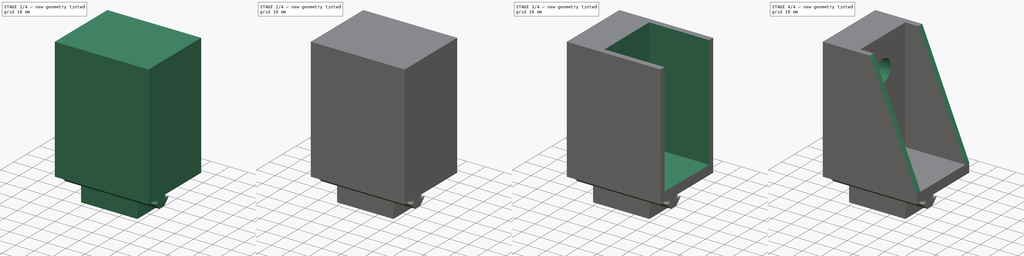
[diagram: build sequence overview — one tinted view per stage of 4, left to right]
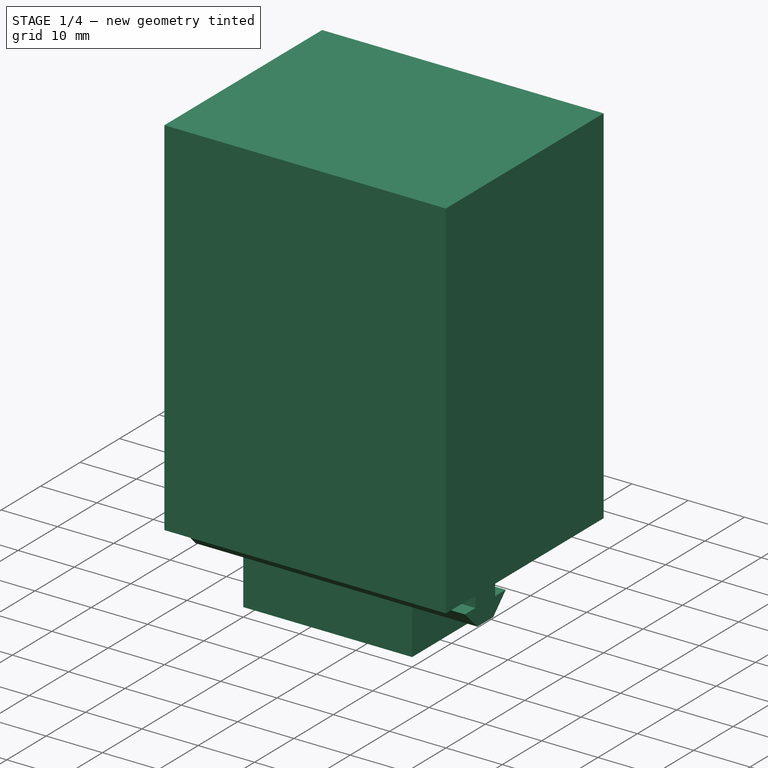
[diagram: stage 1 of 4 — iso view after this stage's code; geometry added in this stage tinted green]
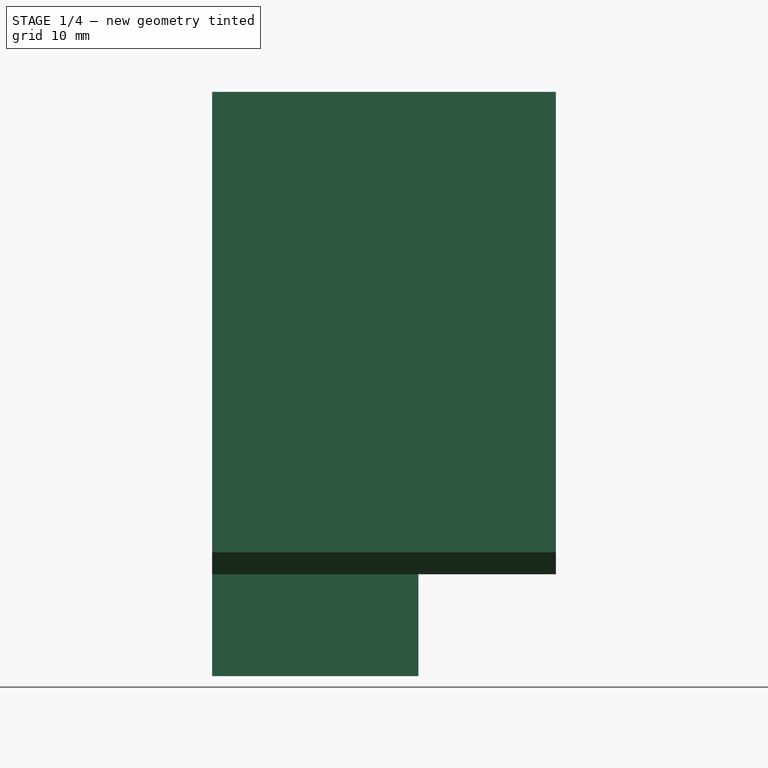
[diagram: stage 1 of 4 — front view after this stage's code; geometry added in this stage tinted green]
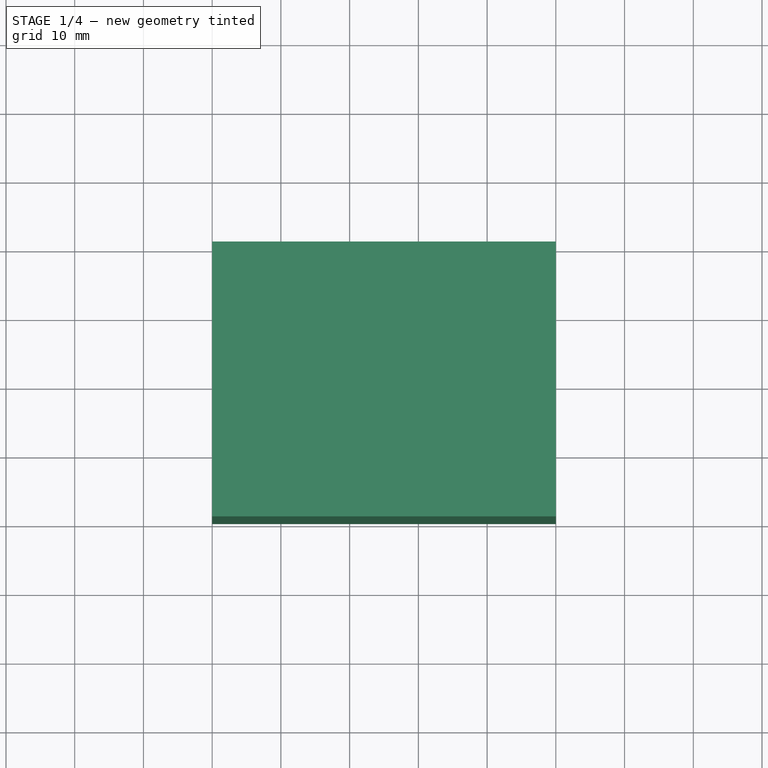
[diagram: stage 1 of 4 — top view after this stage's code; geometry added in this stage tinted green]
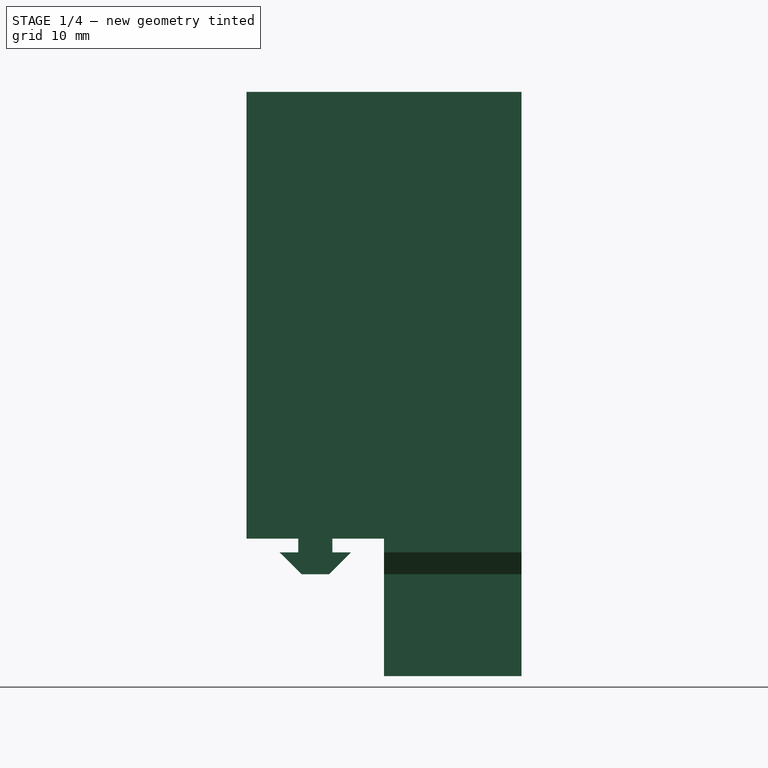
[diagram: stage 1 of 4 — right view after this stage's code; geometry added in this stage tinted green]
FCSTD DOCUMENT  (FreeCAD 0.18R4 (GitTag))
Label: corner-right
License: All rights reserved
LicenseURL: http://en.wikipedia.org/wiki/All_rights_reserved
objects: Sketcher::SketchObject×11, PartDesign::Pocket×10, PartDesign::Pad×1, PartDesign::Body×1
note: 34 computed .brp shape members not serialized (recipe doc carries the construction recipe); baked Part::Feature solids carry a one-line shape summary decoded from their .brp

FEATURE [Sketcher::SketchObject] Sketch
  MapMode = 5
  Placement = pos=(0,0,0) rot=(0.57735,0.57735,0.57735;2.0944rad)
  Support = -> [YZ_Plane]
  sketch-geometry (4):
    g0: LineSegment StartX=-20 StartY=42.5 StartZ=0 EndX=20 EndY=42.5 EndZ=0
    g1: LineSegment StartX=20 StartY=42.5 StartZ=0 EndX=20 EndY=-42.5 EndZ=0
    g2: LineSegment StartX=20 StartY=-42.5 StartZ=0 EndX=-20 EndY=-42.5 EndZ=0
    g3: LineSegment StartX=-20 StartY=-42.5 StartZ=0 EndX=-20 EndY=42.5 EndZ=0
  constraints (11):
    c: Coincident(g0,g1)
    c: Coincident(g1,g2)
    c: Coincident(g2,g3)
    c: Coincident(g3,g0)
    c: Horizontal(g0)
    c: Horizontal(g2)
    c: Vertical(g1)
    c: Vertical(g3)
    c: DistanceY(g3,g3) = 85
    c: DistanceX(g2,g2) = 40
    c: Symmetric(g0,g1,g-1)
FEATURE [PartDesign::Pad] Pad
  Length = 50
  Length2 = 100
  Placement = pos=(0,0,0) rot=(0.57735,0.57735,0.57735;2.0944rad)
  Profile = -> Sketch
  Type = 0
FEATURE [Sketcher::SketchObject] Sketch001
  ExternalGeometry = -> [Pad]
  MapMode = 5
  Placement = pos=(50,-2.22e-14,1.67e-14) rot=(0.57735,0.57735,0.57735;2.0944rad)
  Support = -> [Pad]
  sketch-geometry (14):
    g0: LineSegment [constr] StartX=-1.11e-14 StartY=-22.5 StartZ=0 EndX=-20 EndY=-22.5 EndZ=0
    g1: LineSegment StartX=-20 StartY=-22.5 StartZ=0 EndX=-20 EndY=-42.5 EndZ=0
    g2: LineSegment [constr] StartX=-10 StartY=-22.5 StartZ=0 EndX=-10 EndY=-44.2673 EndZ=0
    g3: LineSegment StartX=-12.484 StartY=-22.5 StartZ=0 EndX=-12.484 EndY=-24.5 EndZ=0
    g4: LineSegment StartX=-12.484 StartY=-24.5 StartZ=0 EndX=-15.184 EndY=-24.5 EndZ=0
    g5: LineSegment StartX=-15.184 StartY=-24.5 StartZ=0 EndX=-12 EndY=-27.68 EndZ=0
    g6: LineSegment StartX=-12 StartY=-27.68 StartZ=0 EndX=-8 EndY=-27.68 EndZ=0
    g7: LineSegment StartX=-8 StartY=-27.68 StartZ=0 EndX=-4.81604 EndY=-24.5 EndZ=0
    g8: LineSegment StartX=-4.81604 StartY=-24.5 StartZ=0 EndX=-7.51604 EndY=-24.5 EndZ=0
    g9: LineSegment StartX=-7.51604 StartY=-24.5 StartZ=0 EndX=-7.51604 EndY=-22.5 EndZ=0
    g10: LineSegment StartX=-20 StartY=-42.5 StartZ=0 EndX=-1.07e-14 EndY=-42.5 EndZ=0
    g11: LineSegment StartX=-1.11e-14 StartY=-22.5 StartZ=0 EndX=-1.11e-14 EndY=-42.5 EndZ=0
    g12: LineSegment StartX=-20 StartY=-22.5 StartZ=0 EndX=-12.484 EndY=-22.5 EndZ=0
    g13: LineSegment StartX=-7.51604 StartY=-22.5 StartZ=0 EndX=-1.15e-14 EndY=-22.5 EndZ=0
  constraints (39):
    c: Horizontal(g0)
    c: DistanceX(g0,g0) = 20
    c: DistanceY(g-4,g0) = 20
    c: Vertical(g1)
    c: Coincident(g1,g0)
    c: Vertical(g2)
    c: Symmetric(g0,g0,g2)
    c: Coincident(g3,g4)
    c: Coincident(g4,g5)
    c: Coincident(g5,g6)
    c: Coincident(g6,g7)
    c: Coincident(g7,g8)
    c: Coincident(g8,g9)
    c: Equal(g3,g9)
    c: DistanceY(g9,g9) = 2
    c: PointOnObject(g3,g0)
    c: PointOnObject(g9,g0)
    c: Horizontal(g8)
    c: Horizontal(g4)
    c: Equal(g4,g8)
    c: DistanceX(g4,g4) = 2.7
    c: Vertical(g3)
    c: Vertical(g9)
    c: DistanceX(g6,g6) = 4
    c: DistanceY(g6,g2) = 5.18
    c: Distance(g5) = 4.5
    c: Distance(g7) = 4.5
    c: Symmetric(g5,g6,g2)
    c: PointOnObject(g1,g-4)
    c: Coincident(g10,g1)
    c: Coincident(g11,g0)
    c: Coincident(g13,g9)
    c: Coincident(g13,g0)
    c: Coincident(g12,g3)
    c: Coincident(g12,g0)
    c: Coincident(g10,g11)
    c: PointOnObject(g1,g-5)
    c: Vertical(g11)
    c: Horizontal(g10)
FEATURE [PartDesign::Pocket] Pocket
  BaseFeature = -> Pad
  Length = 50
  Length2 = 100
  Placement = pos=(0,0,0) rot=(0.57735,0.57735,0.57735;2.0944rad)
  Profile = -> Sketch001
  Type = 0
FEATURE [Sketcher::SketchObject] Sketch002
  ExternalGeometry = -> [Pocket]
  MapMode = 5
  Placement = pos=(8.9e-15,20,-1.33e-14) rot=(0.57735,0.57735,0.57735;4.18879rad)
  Support = -> [Pocket]
  sketch-geometry (14):
    g0: LineSegment StartX=-22.5 StartY=50 StartZ=0 EndX=-42.5 EndY=50 EndZ=0
    g1: LineSegment StartX=-42.5 StartY=50 StartZ=0 EndX=-42.5 EndY=30 EndZ=0
    g2: LineSegment StartX=-42.5 StartY=30 StartZ=0 EndX=-22.5 EndY=30 EndZ=0
    g3: LineSegment [constr] StartX=-22.5 StartY=30 StartZ=0 EndX=-22.5 EndY=50 EndZ=0
    g4: LineSegment [constr] StartX=-48.0641 StartY=40 StartZ=0 EndX=-22.5 EndY=40 EndZ=0
    g5: LineSegment StartX=-22.5 StartY=42.48 StartZ=0 EndX=-24.5 EndY=42.48 EndZ=0
    g6: LineSegment StartX=-24.5 StartY=42.48 StartZ=0 EndX=-24.5 EndY=45.18 EndZ=0
    g7: LineSegment StartX=-24.5 StartY=45.18 StartZ=0 EndX=-27.68 EndY=42 EndZ=0
    g8: LineSegment StartX=-27.68 StartY=42 StartZ=0 EndX=-27.68 EndY=38 EndZ=0
    g9: LineSegment StartX=-27.68 StartY=38 StartZ=0 EndX=-24.5 EndY=34.82 EndZ=0
    g10: LineSegment StartX=-24.5 StartY=34.82 StartZ=0 EndX=-24.5 EndY=37.52 EndZ=0
    g11: LineSegment StartX=-24.5 StartY=37.52 StartZ=0 EndX=-22.5 EndY=37.52 EndZ=0
    g12: LineSegment StartX=-22.5 StartY=42.48 StartZ=0 EndX=-22.5 EndY=50 EndZ=0
    g13: LineSegment StartX=-22.5 StartY=37.52 StartZ=0 EndX=-22.5 EndY=30 EndZ=0
  constraints (38):
    c: Coincident(g0,g1)
    c: Coincident(g1,g2)
    c: Coincident(g2,g3)
    c: Coincident(g3,g0)
    c: Horizontal(g0)
    c: Horizontal(g2)
    c: Vertical(g1)
    c: Vertical(g3)
    c: Equal(g3,g2)
    c: DistanceX(g2,g2) = 20
    c: Coincident(g0,g-4)
    c: Horizontal(g4)
    c: Symmetric(g0,g2,g4)
    c: Coincident(g5,g6)
    c: Coincident(g6,g7)
    c: Coincident(g7,g8)
    c: Coincident(g8,g9)
    c: Coincident(g9,g10)
    c: Coincident(g10,g11)
    c: Horizontal(g5)
    c: Horizontal(g11)
    c: Vertical(g10)
    c: Vertical(g6)
    c: PointOnObject(g5,g3)
    c: PointOnObject(g11,g3)
    c: DistanceX(g5,g5) = 2
    c: Equal(g5,g11)
    c: DistanceY(g6,g6) = 2.7
    c: Equal(g6,g10)
    c: DistanceY(g8,g8) = 4
    c: Angle(g7,g6) = 0.785398
    c: Angle(g10,g9) = 0.785398
    c: DistanceX(g8,g11) = 5.18
    c: Symmetric(g7,g8,g4)
    c: Coincident(g12,g0)
    c: Coincident(g12,g5)
    c: Coincident(g13,g11)
    c: Coincident(g13,g2)
FEATURE [PartDesign::Pocket] Pocket001
  BaseFeature = -> Pocket
  Length = 20
  Length2 = 100
  Placement = pos=(0,0,0) rot=(0.57735,0.57735,0.57735;2.0944rad)
  Profile = -> Sketch002
  Type = 0
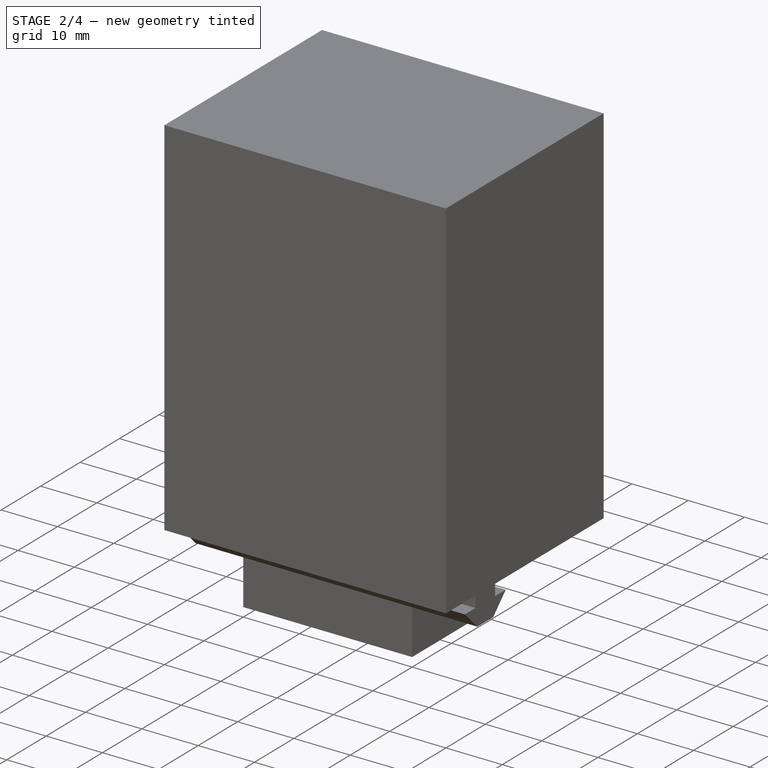
[diagram: stage 2 of 4 — iso view after this stage's code; geometry added in this stage tinted green]
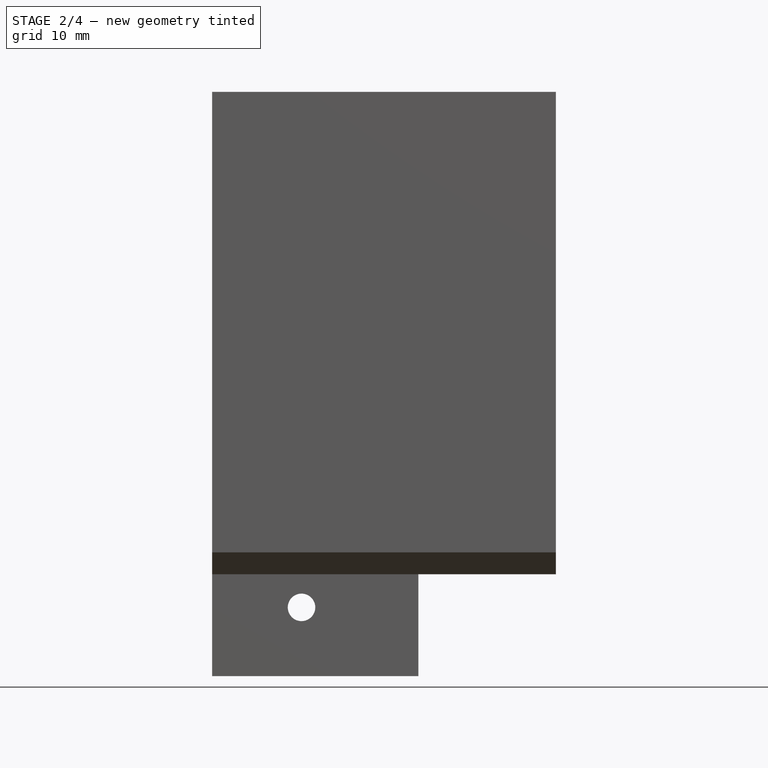
[diagram: stage 2 of 4 — front view after this stage's code; geometry added in this stage tinted green]
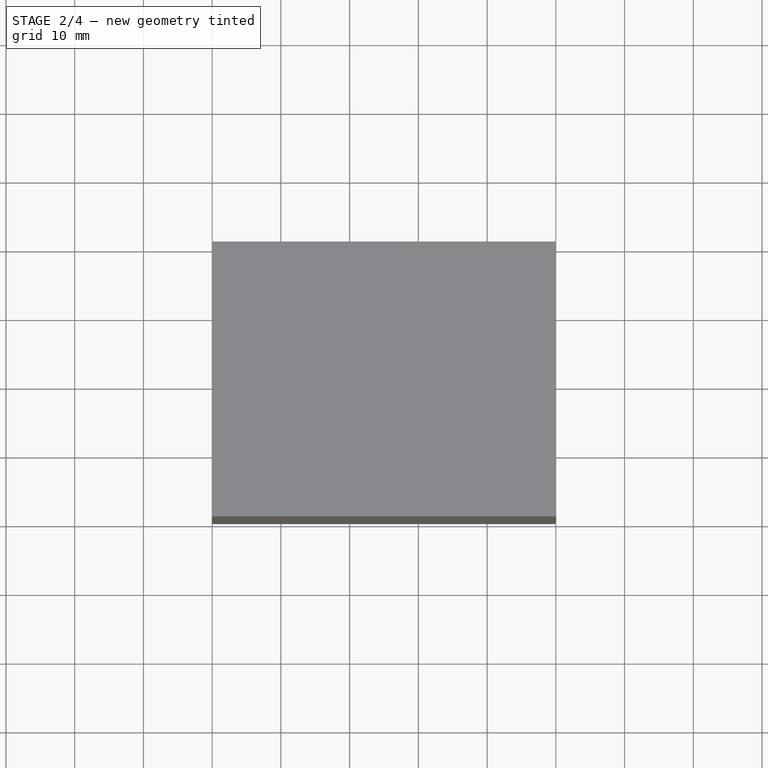
[diagram: stage 2 of 4 — top view after this stage's code; geometry added in this stage tinted green]
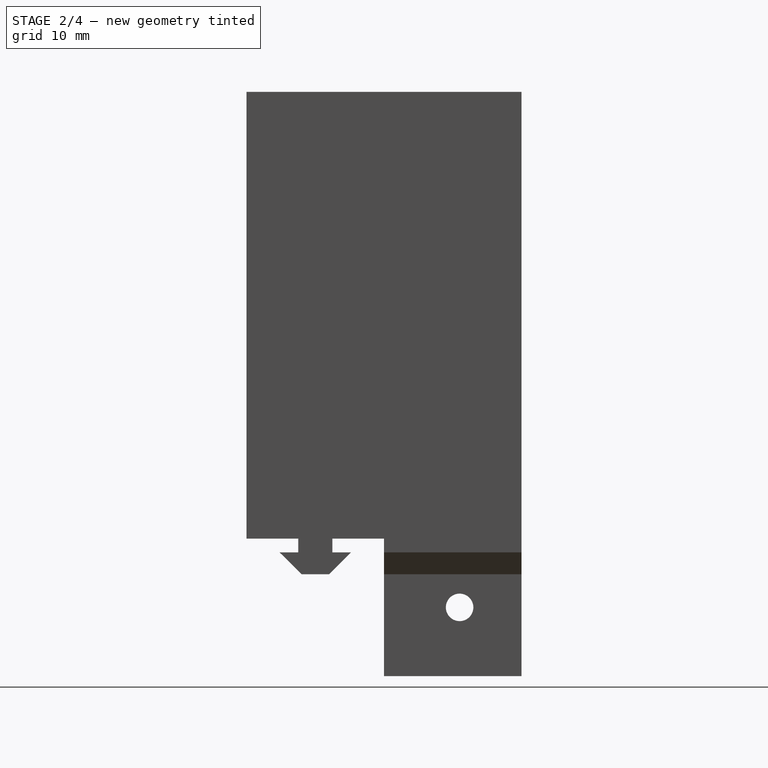
[diagram: stage 2 of 4 — right view after this stage's code; geometry added in this stage tinted green]
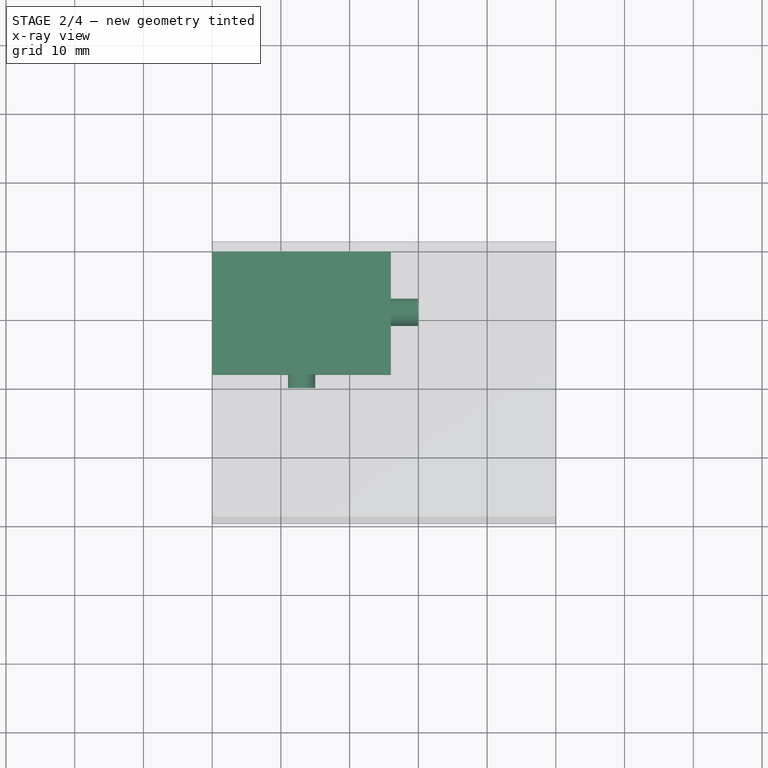
[diagram: stage 2 of 4 — x-ray composite at the top view; earlier geometry ghosted, this stage's added geometry solid]
FEATURE [Sketcher::SketchObject] Sketch003
  ExternalGeometry = -> [Pocket001]
  MapMode = 5
  Placement = pos=(8.9e-15,20,-2e-14) rot=(0.57735,0.57735,0.57735;4.18879rad)
  Support = -> [Pocket001]
  sketch-geometry (8):
    g0: LineSegment StartX=-40.5 StartY=26 StartZ=0 EndX=-24.5 EndY=26 EndZ=0
    g1: LineSegment StartX=-24.5 StartY=26 StartZ=0 EndX=-24.5 EndY=0 EndZ=0
    g2: LineSegment StartX=-24.5 StartY=0 StartZ=0 EndX=-40.5 EndY=0 EndZ=0
    g3: LineSegment StartX=-40.5 StartY=0 StartZ=0 EndX=-40.5 EndY=26 EndZ=0
    g4: LineSegment [constr] StartX=-42.5 StartY=30 StartZ=0 EndX=-22.5 EndY=30 EndZ=0
    g5: LineSegment [constr] StartX=-22.5 StartY=30 StartZ=0 EndX=-22.5 EndY=0 EndZ=0
    g6: LineSegment [constr] StartX=-22.5 StartY=0 StartZ=0 EndX=-42.5 EndY=0 EndZ=0
    g7: LineSegment [constr] StartX=-42.5 StartY=0 StartZ=0 EndX=-42.5 EndY=30 EndZ=0
  constraints (23):
    c: Coincident(g0,g1)
    c: Coincident(g1,g2)
    c: Coincident(g2,g3)
    c: Coincident(g3,g0)
    c: Horizontal(g0)
    c: Horizontal(g2)
    c: Vertical(g1)
    c: Vertical(g3)
    c: Coincident(g4,g5)
    c: Coincident(g5,g6)
    c: Coincident(g6,g7)
    c: Coincident(g7,g4)
    c: Horizontal(g4)
    c: Horizontal(g6)
    c: Vertical(g5)
    c: Vertical(g7)
    c: Coincident(g4,g-4)
    c: DistanceX(g4,g4) = 20
    c: DistanceX(g4,g0) = 2
    c: DistanceX(g0,g4) = 2
    c: PointOnObject(g6,g-1)
    c: PointOnObject(g2,g6)
    c: DistanceY(g0,g4) = 4
FEATURE [PartDesign::Pocket] Pocket002
  BaseFeature = -> Pocket001
  Length = 18
  Length2 = 100
  Placement = pos=(0,0,0) rot=(0.57735,0.57735,0.57735;2.0944rad)
  Profile = -> Sketch003
  Type = 0
FEATURE [Sketcher::SketchObject] Sketch004
  ExternalGeometry = -> [Pocket002]
  MapMode = 5
  Placement = pos=(8e-16,2,-2.4e-15) rot=(0.57735,0.57735,0.57735;4.18879rad)
  Support = -> [Pocket002]
  sketch-geometry (1):
    g0: Circle CenterX=-32.5 CenterY=13 CenterZ=0 NormalX=0 NormalY=0 NormalZ=1 AngleXU=0 Radius=2
  constraints (3):
    c: DistanceY(g-4,g0) = 13
    c: DistanceX(g-4,g0) = 8
    c: Diameter(g0) = 4
FEATURE [PartDesign::Pocket] Pocket003
  BaseFeature = -> Pocket002
  Length = 4
  Length2 = 100
  Placement = pos=(0,0,0) rot=(0.57735,0.57735,0.57735;2.0944rad)
  Profile = -> Sketch004
  Type = 0
FEATURE [Sketcher::SketchObject] Sketch005
  ExternalGeometry = -> [Pocket003]
  MapMode = 5
  Placement = pos=(26,-1.88e-14,1.15e-14) rot=(-0.57735,-0.57735,0.57735;2.0944rad)
  Support = -> [Pocket003]
  sketch-geometry (1):
    g0: Circle CenterX=11 CenterY=32.5 CenterZ=0 NormalX=0 NormalY=0 NormalZ=1 AngleXU=0 Radius=2
  constraints (2):
    c: Diameter(g0) = 4
    c: Symmetric(g-3,g-4,g0)
FEATURE [PartDesign::Pocket] Pocket004
  BaseFeature = -> Pocket003
  Length = 4
  Length2 = 100
  Placement = pos=(0,0,0) rot=(0.57735,0.57735,0.57735;2.0944rad)
  Profile = -> Sketch005
  Type = 0
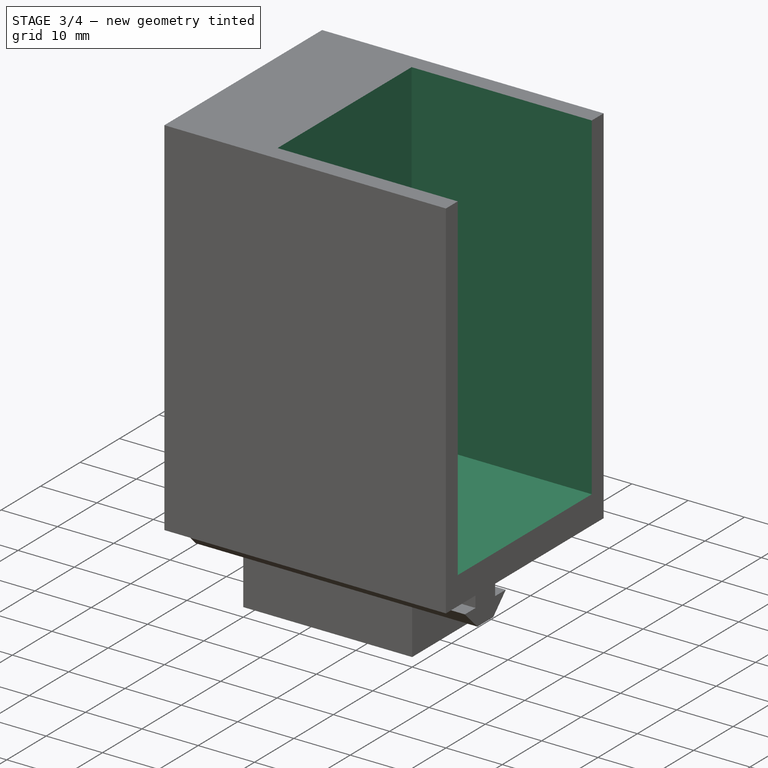
[diagram: stage 3 of 4 — iso view after this stage's code; geometry added in this stage tinted green]
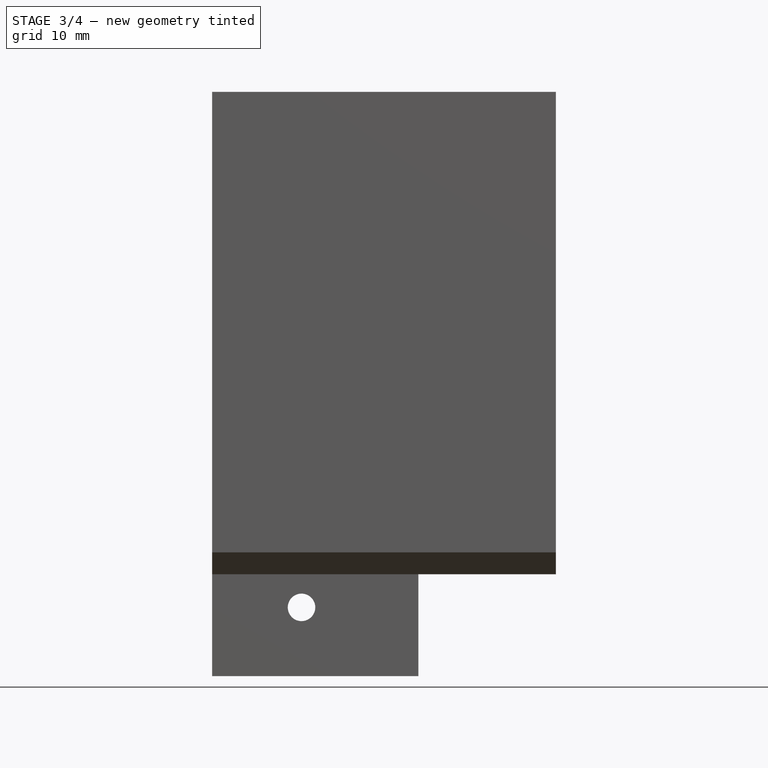
[diagram: stage 3 of 4 — front view after this stage's code; geometry added in this stage tinted green]
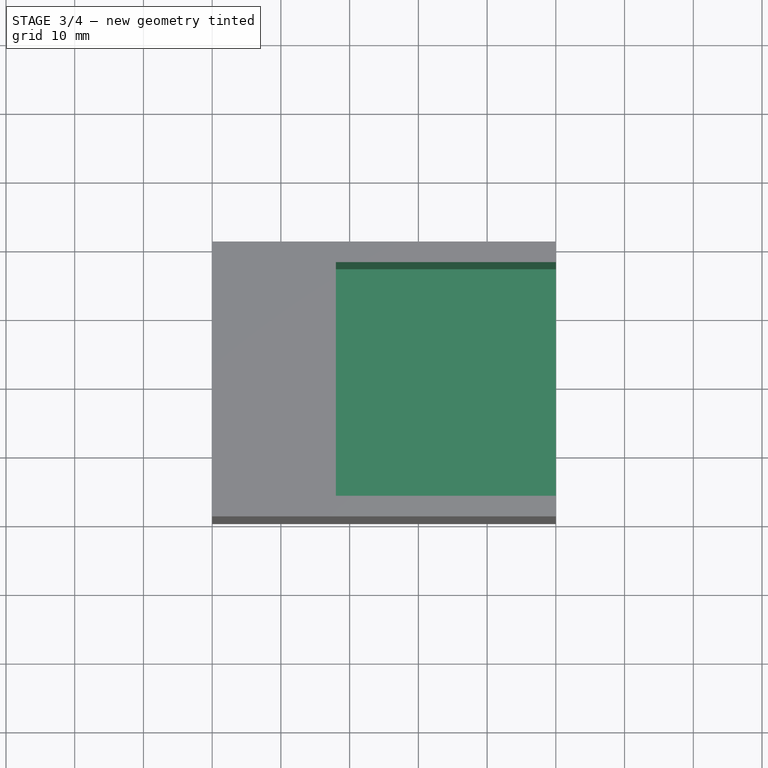
[diagram: stage 3 of 4 — top view after this stage's code; geometry added in this stage tinted green]
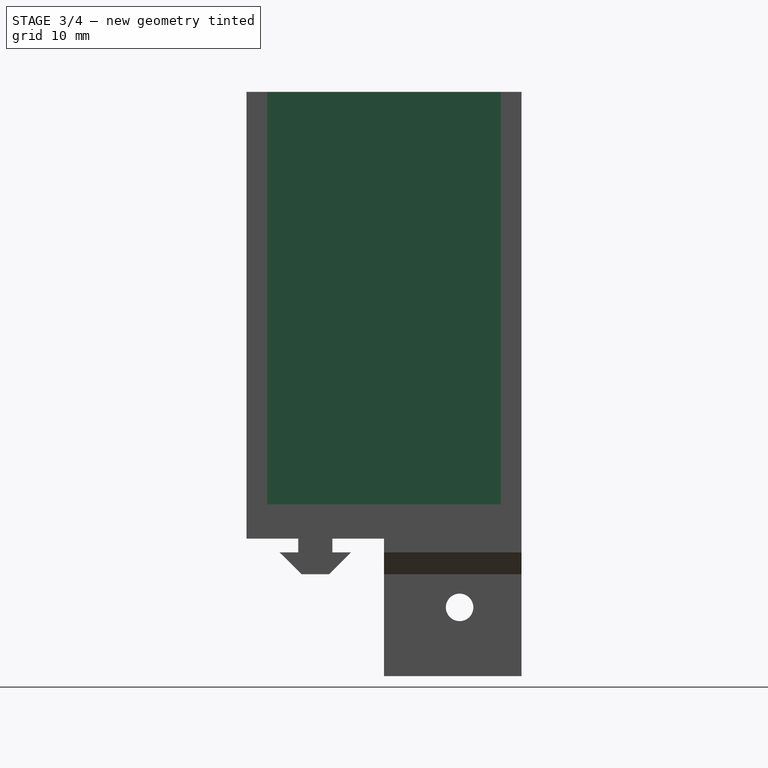
[diagram: stage 3 of 4 — right view after this stage's code; geometry added in this stage tinted green]
FEATURE [Sketcher::SketchObject] Sketch006
  ExternalGeometry = -> [Pocket004]
  MapMode = 5
  Placement = pos=(8.73e-14,-4.72e-14,-42.5) rot=(0.707107,0.707107,0;3.14159rad)
  Support = -> [Pocket004]
  sketch-geometry (3):
    g0: LineSegment StartX=2.00569 StartY=0 StartZ=0 EndX=20 EndY=26 EndZ=0
    g1: LineSegment StartX=2.00569 StartY=0 StartZ=0 EndX=20 EndY=7.1e-15 EndZ=0
    g2: LineSegment StartX=20 StartY=7.1e-15 StartZ=0 EndX=20 EndY=26 EndZ=0
  constraints (7):
    c: PointOnObject(g0,g-3)
    c: PointOnObject(g0,g-1)
    c: DistanceY(g-3,g0) = 26
    c: Coincident(g0,g2)
    c: Coincident(g2,g1)
    c: Coincident(g1,g-3)
    c: Coincident(g1,g0)
FEATURE [PartDesign::Pocket] Pocket005
  BaseFeature = -> Pocket004
  Length = 2
  Length2 = 100
  Placement = pos=(0,0,0) rot=(0.57735,0.57735,0.57735;2.0944rad)
  Profile = -> Sketch006
  Type = 0
FEATURE [Sketcher::SketchObject] Sketch007
  ExternalGeometry = -> [Pocket005]
  MapMode = 5
  Placement = pos=(50,-8.88e-14,5e-14) rot=(0.57735,0.57735,0.57735;2.0944rad)
  Support = -> [Pocket005]
  sketch-geometry (4):
    g0: LineSegment StartX=-17 StartY=42.5 StartZ=0 EndX=17 EndY=42.5 EndZ=0
    g1: LineSegment StartX=17 StartY=42.5 StartZ=0 EndX=17 EndY=-17.5 EndZ=0
    g2: LineSegment StartX=17 StartY=-17.5 StartZ=0 EndX=-17 EndY=-17.5 EndZ=0
    g3: LineSegment StartX=-17 StartY=-17.5 StartZ=0 EndX=-17 EndY=42.5 EndZ=0
  constraints (12):
    c: Coincident(g0,g1)
    c: Coincident(g1,g2)
    c: Coincident(g2,g3)
    c: Coincident(g3,g0)
    c: Horizontal(g0)
    c: Horizontal(g2)
    c: Vertical(g1)
    c: Vertical(g3)
    c: DistanceY(g-3,g2) = 5
    c: DistanceX(g0,g-4) = 3
    c: DistanceX(g-3,g0) = 3
    c: PointOnObject(g0,g-6)
FEATURE [PartDesign::Pocket] Pocket006
  BaseFeature = -> Pocket005
  Length = 32
  Length2 = 100
  Placement = pos=(0,0,0) rot=(0.57735,0.57735,0.57735;2.0944rad)
  Profile = -> Sketch007
  Type = 0
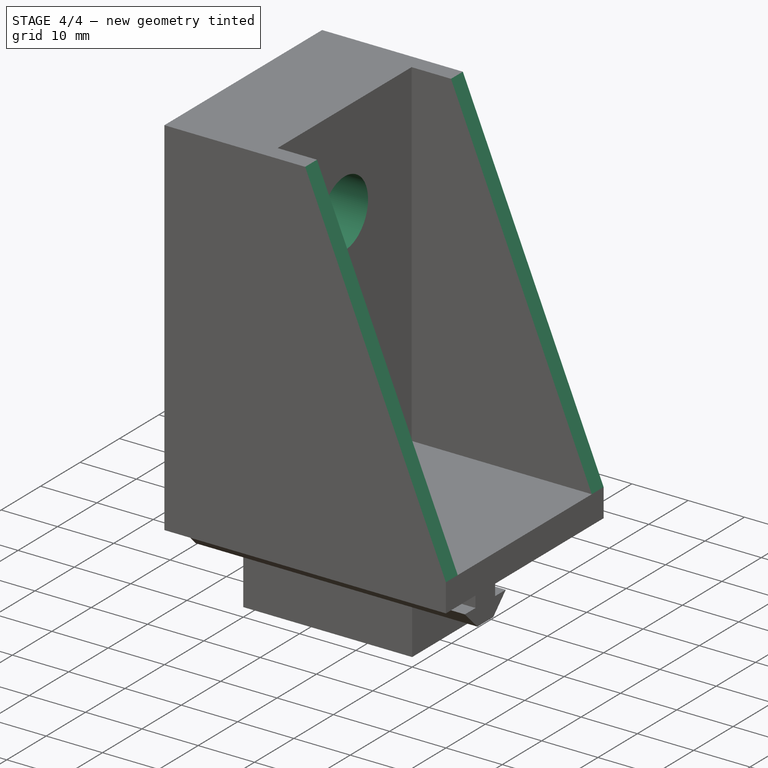
[diagram: stage 4 of 4 — iso view after this stage's code; geometry added in this stage tinted green]
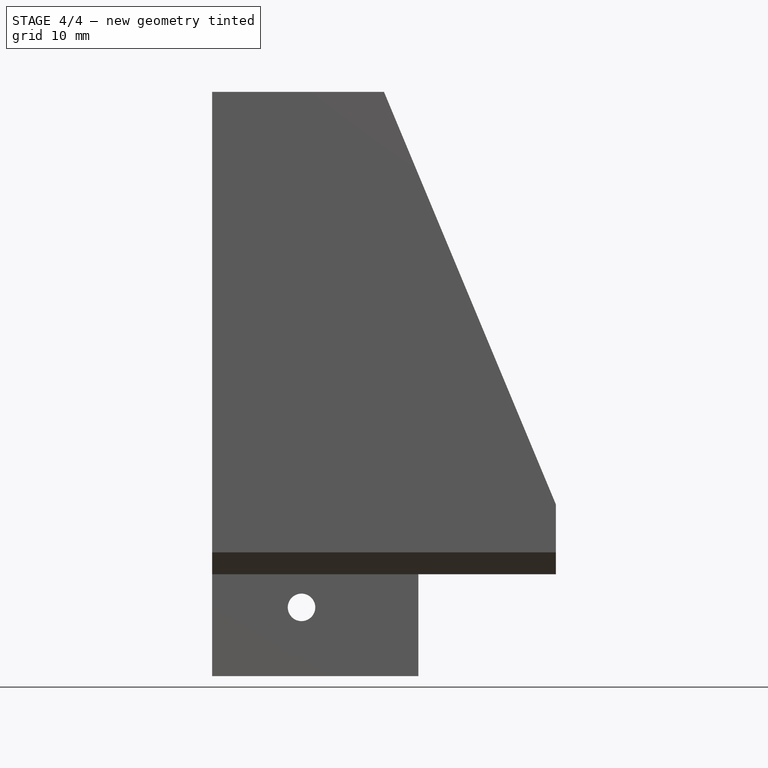
[diagram: stage 4 of 4 — front view after this stage's code; geometry added in this stage tinted green]
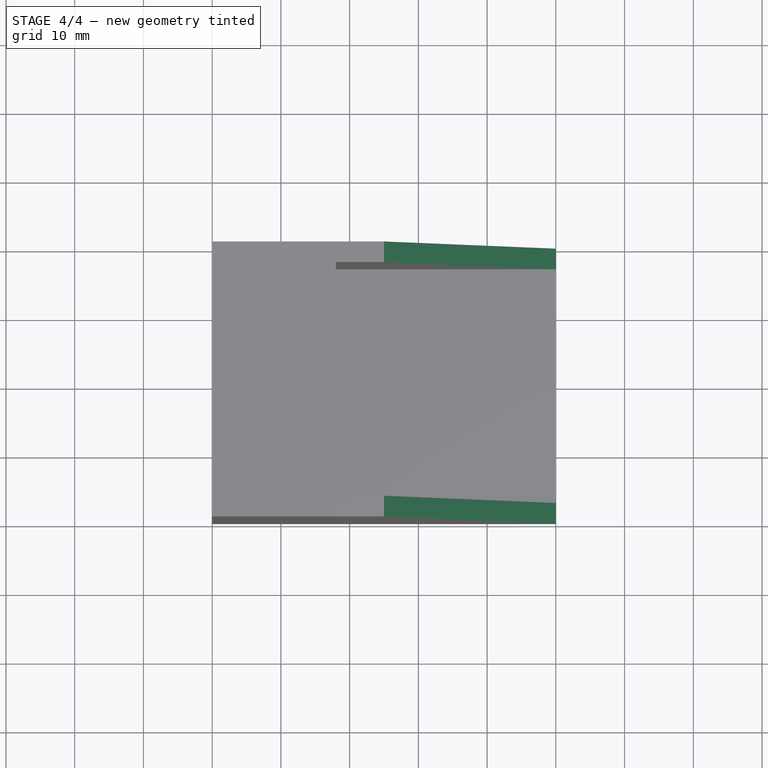
[diagram: stage 4 of 4 — top view after this stage's code; geometry added in this stage tinted green]
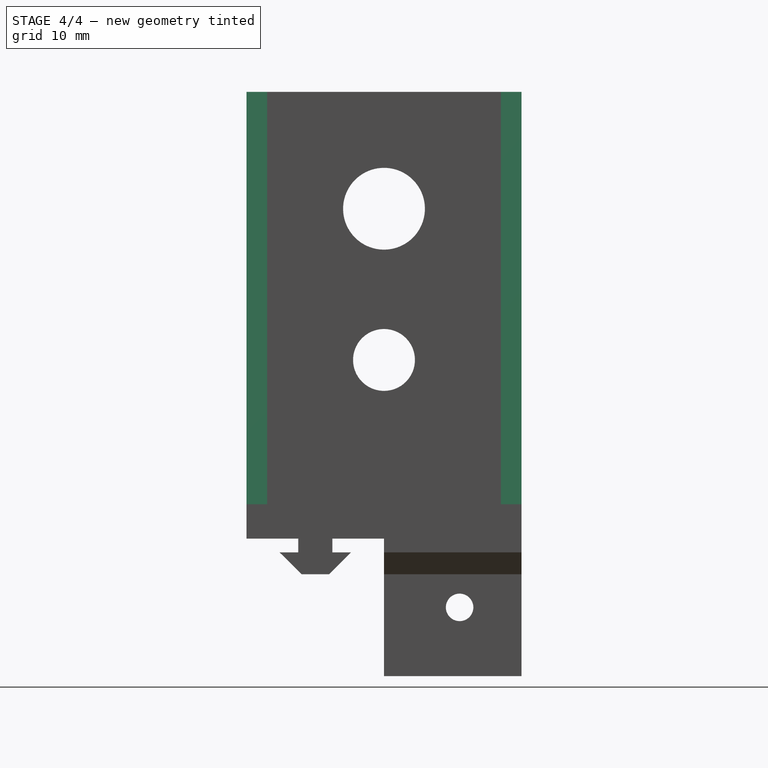
[diagram: stage 4 of 4 — right view after this stage's code; geometry added in this stage tinted green]
FEATURE [Sketcher::SketchObject] Sketch008
  ExternalGeometry = -> [Pocket006]
  MapMode = 5
  Placement = pos=(18,-3.22e-14,2.01e-14) rot=(0.57735,0.57735,0.57735;2.0944rad)
  Support = -> [Pocket006]
  sketch-geometry (6):
    g0: LineSegment [constr] StartX=-21 StartY=24.5 StartZ=0 EndX=21 EndY=24.5 EndZ=0
    g1: LineSegment [constr] StartX=21 StartY=24.5 StartZ=0 EndX=21 EndY=-17.5 EndZ=0
    g2: LineSegment [constr] StartX=21 StartY=-17.5 StartZ=0 EndX=-21 EndY=-17.5 EndZ=0
    g3: LineSegment [constr] StartX=-21 StartY=-17.5 StartZ=0 EndX=-21 EndY=24.5 EndZ=0
    g4: Circle CenterX=-2e-16 CenterY=3.5 CenterZ=0 NormalX=0 NormalY=0 NormalZ=1 AngleXU=0 Radius=4.5
    g5: Circle CenterX=0 CenterY=25.5 CenterZ=0 NormalX=0 NormalY=0 NormalZ=1 AngleXU=0 Radius=5.95
  constraints (16):
    c: Coincident(g0,g1)
    c: Coincident(g1,g2)
    c: Coincident(g2,g3)
    c: Coincident(g3,g0)
    c: Horizontal(g2)
    c: Vertical(g1)
    c: Vertical(g3)
    c: Equal(g0,g1)
    c: DistanceX(g0,g0) = 42
    c: Symmetric(g0,g0,g-2)
    c: Diameter(g4) = 9
    c: Diameter(g5) = 11.9
    c: PointOnObject(g5,g-2)
    c: DistanceY(g4,g5) = 22
    c: Symmetric(g0,g1,g4)
    c: DistanceY(g-3,g1) = 5
FEATURE [PartDesign::Pocket] Pocket007
  BaseFeature = -> Pocket006
  Length = 18
  Length2 = 100
  Placement = pos=(0,0,0) rot=(0.57735,0.57735,0.57735;2.0944rad)
  Profile = -> Sketch008
  Type = 0
FEATURE [Sketcher::SketchObject] Sketch009
  ExternalGeometry = -> [Pocket007]
  MapMode = 5
  Placement = pos=(0,0,0) rot=(-0.57735,-0.57735,0.57735;2.0944rad)
  Support = -> [Pocket007]
  sketch-geometry (1):
    g0: Circle CenterX=4.4e-15 CenterY=-3.5 CenterZ=0 NormalX=0 NormalY=0 NormalZ=1 AngleXU=0 Radius=10.85
  constraints (2):
    c: Diameter(g0) = 21.7
    c: Coincident(g0,g-7)
FEATURE [PartDesign::Pocket] Pocket008
  BaseFeature = -> Pocket007
  Length = 8
  Length2 = 100
  Placement = pos=(0,0,0) rot=(0.57735,0.57735,0.57735;2.0944rad)
  Profile = -> Sketch009
  Type = 0
FEATURE [Sketcher::SketchObject] Sketch010
  ExternalGeometry = -> [Pocket008]
  MapMode = 5
  Placement = pos=(8.9e-15,20,-6.66e-14) rot=(0.57735,0.57735,0.57735;4.18879rad)
  Support = -> [Pocket008]
  sketch-geometry (3):
    g0: LineSegment StartX=-17.5 StartY=50 StartZ=0 EndX=42.5 EndY=50 EndZ=0
    g1: LineSegment StartX=42.5 StartY=50 StartZ=0 EndX=42.5 EndY=25 EndZ=0
    g2: LineSegment StartX=42.5 StartY=25 StartZ=0 EndX=-17.5 EndY=50 EndZ=0
  constraints (8):
    c: Coincident(g0,g1)
    c: Coincident(g1,g2)
    c: Coincident(g2,g0)
    c: Horizontal(g0)
    c: Vertical(g1)
    c: DistanceY(g1,g1) = 25
    c: DistanceX(g-3,g0) = 5
    c: Coincident(g0,g-4)
FEATURE [PartDesign::Pocket] Pocket009
  BaseFeature = -> Pocket008
  Length = 5
  Length2 = 100
  Placement = pos=(0,0,0) rot=(0.57735,0.57735,0.57735;2.0944rad)
  Profile = -> Sketch010
  Type = 1
FEATURE [PartDesign::Body] Body
  Group = -> [Sketch,Pad,Sketch001,Pocket,Sketch002,Pocket001,Sketch003,Pocket002,Sketch004,Pocket003,Sketch005,Pocket004,Sketch006,Pocket005,Sketch007,Pocket006,Sketch008,Pocket007,Sketch009,Pocket008,Sketch010,Pocket009]
  Origin = -> Origin
  Tip = -> Pocket009
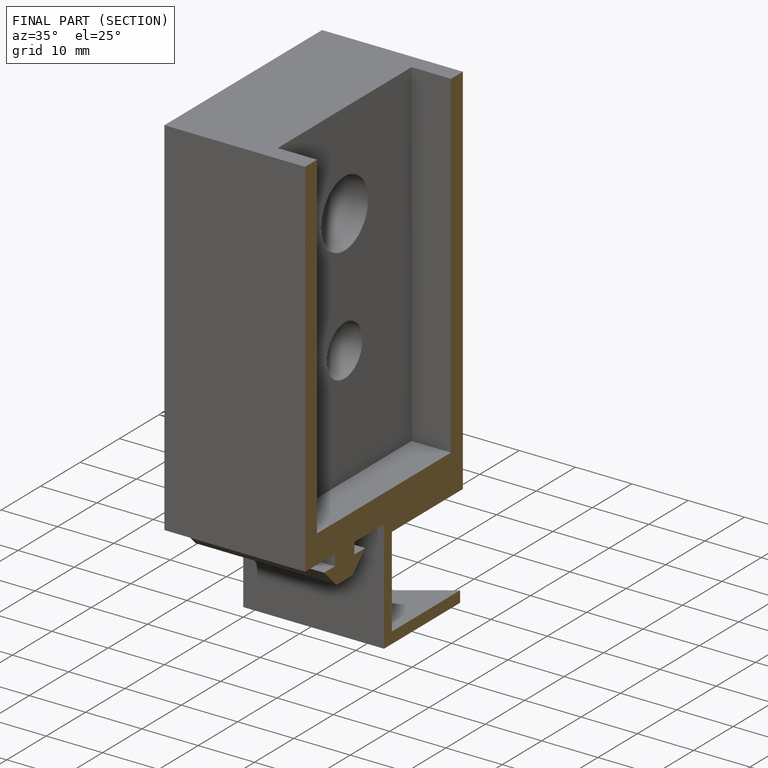
[diagram: finished part — half-section view (interior)]
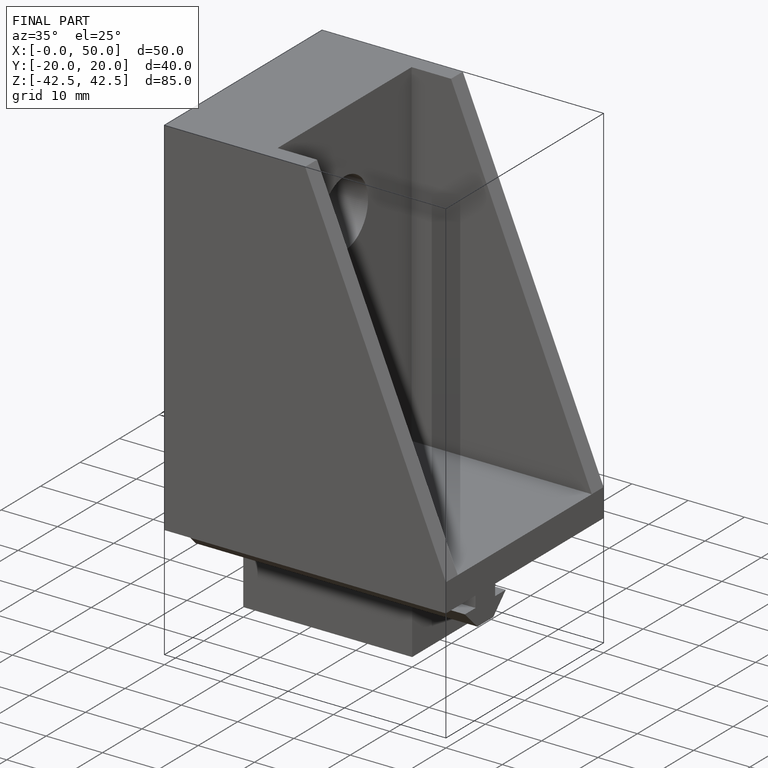
[diagram: finished part — iso view with bounding-box wireframe]
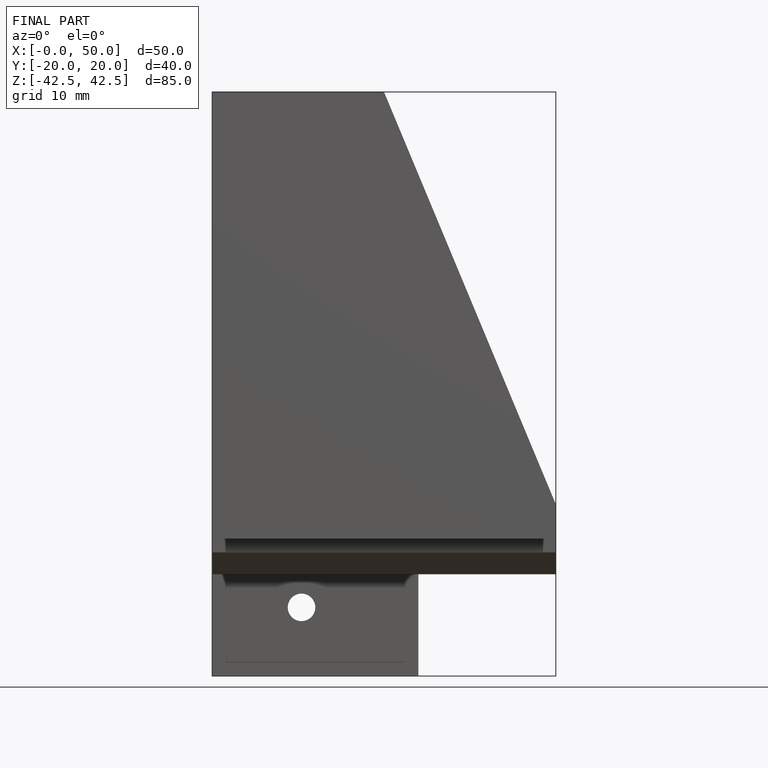
[diagram: finished part — front view with bounding-box wireframe]
